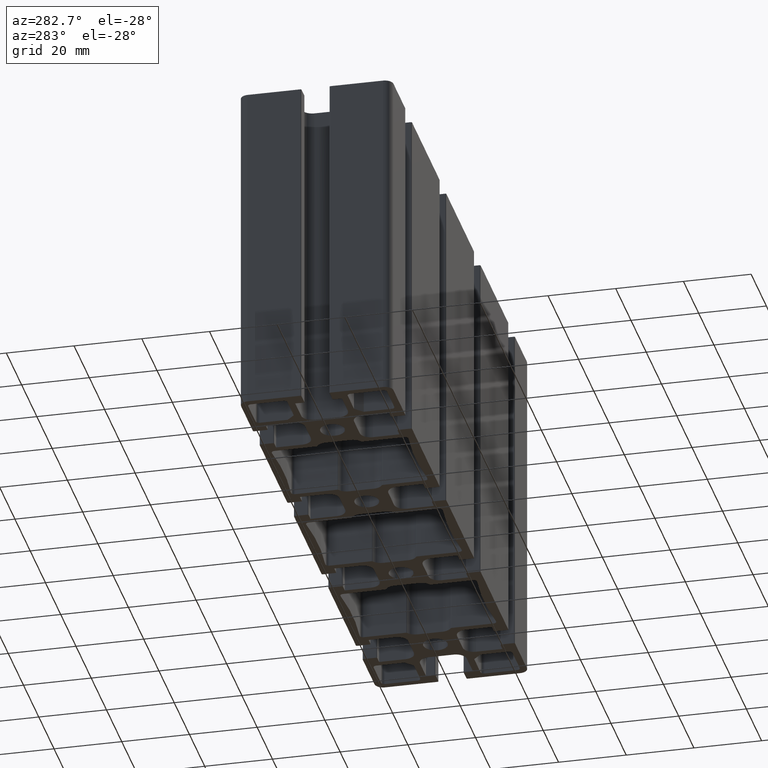
[diagram: clean part render]
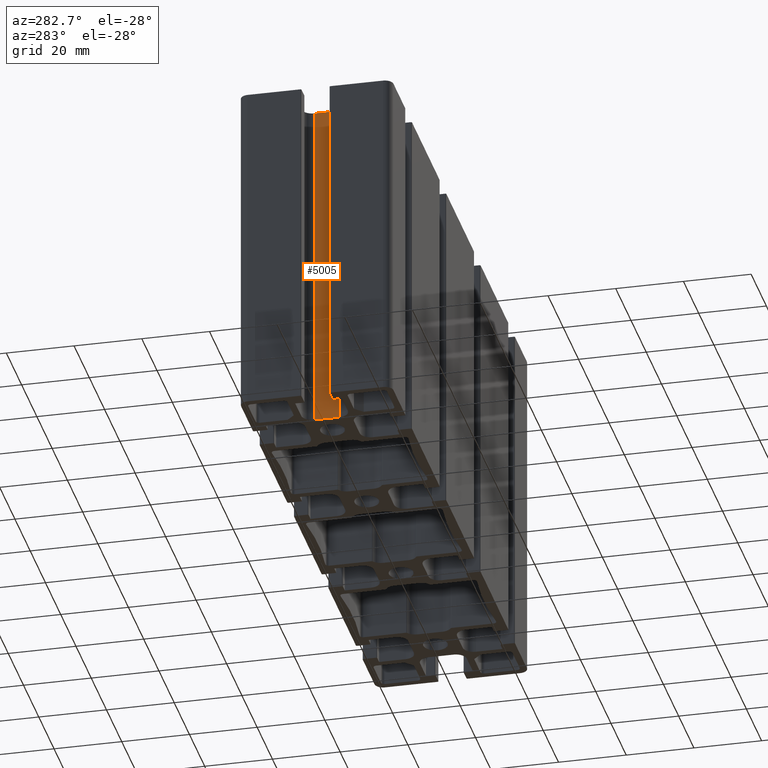
[diagram: same view with one face highlighted and labeled with its STEP entity id]
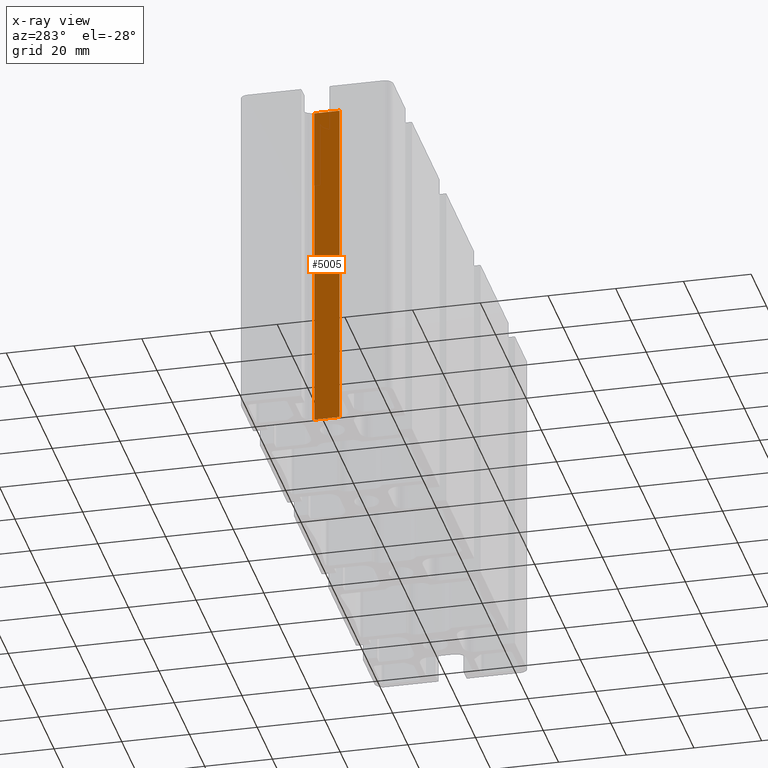
[diagram: x-ray of the same camera — body ghosted, the highlighted face saturated]
A machine part, auxiliary view. The second image highlights one B-rep face of the part: STEP entity #5005.
The next image is the same camera in x-ray: the body ghosted, the highlighted face saturated — about 0% of this face is hidden behind the body in this view.
In plain terms, the highlighted planar face has unit normal (1, -0, 0).
Its self-contained STEP definition (entity closure, byte-faithful):
#453=FACE_OUTER_BOUND('',#711,.T.);
#711=EDGE_LOOP('',(#3527,#3528,#3529,#3530));
#1063=LINE('',#7598,#1595);
#1065=LINE('',#7604,#1597);
#1066=LINE('',#7606,#1598);
#1067=LINE('',#7607,#1599);
#1595=VECTOR('',#6075,100.);
#1597=VECTOR('',#6081,7.39999999999999);
#1598=VECTOR('',#6082,100.);
#1599=VECTOR('',#6083,7.39999999999999);
#2127=VERTEX_POINT('',#7594);
#2129=VERTEX_POINT('',#7597);
#2131=VERTEX_POINT('',#7603);
#2132=VERTEX_POINT('',#7605);
#2700=EDGE_CURVE('',#2129,#2127,#1063,.T.);
#2703=EDGE_CURVE('',#2131,#2127,#1065,.T.);
#2704=EDGE_CURVE('',#2132,#2131,#1066,.T.);
#2705=EDGE_CURVE('',#2129,#2132,#1067,.T.);
#3527=ORIENTED_EDGE('',*,*,#2703,.F.);
#3528=ORIENTED_EDGE('',*,*,#2704,.F.);
#3529=ORIENTED_EDGE('',*,*,#2705,.F.);
#3530=ORIENTED_EDGE('',*,*,#2700,.T.);
#4832=PLANE('',#5327);
#5005=ADVANCED_FACE('',(#453),#4832,.F.);
#5327=AXIS2_PLACEMENT_3D('',#7602,#6079,#6080);
#6075=DIRECTION('',(0.,0.,1.));
#6079=DIRECTION('center_axis',(1.,-1.20024110770287E-15,0.));
#6080=DIRECTION('ref_axis',(0.,0.,-1.));
#6081=DIRECTION('',(-1.20024110770287E-15,-1.,0.));
#6082=DIRECTION('',(0.,0.,1.));
#6083=DIRECTION('',(1.20024110770287E-15,1.,0.));
#7594=CARTESIAN_POINT('',(-74.69999999999,-3.69999999999003,100.));
#7597=CARTESIAN_POINT('',(-74.69999999999,-3.69999999999003,0.));
#7598=CARTESIAN_POINT('',(-74.69999999999,-3.69999999999003,0.));
#7602=CARTESIAN_POINT('Origin',(-74.69999999999,3.70000000000996,0.));
#7603=CARTESIAN_POINT('',(-74.69999999999,3.70000000000996,100.));
#7604=CARTESIAN_POINT('',(-74.69999999999,1.85000000000503,100.));
#7605=CARTESIAN_POINT('',(-74.69999999999,3.70000000000996,0.));
#7606=CARTESIAN_POINT('',(-74.69999999999,3.70000000000996,0.));
#7607=CARTESIAN_POINT('',(-74.69999999999,1.85000000000503,0.));